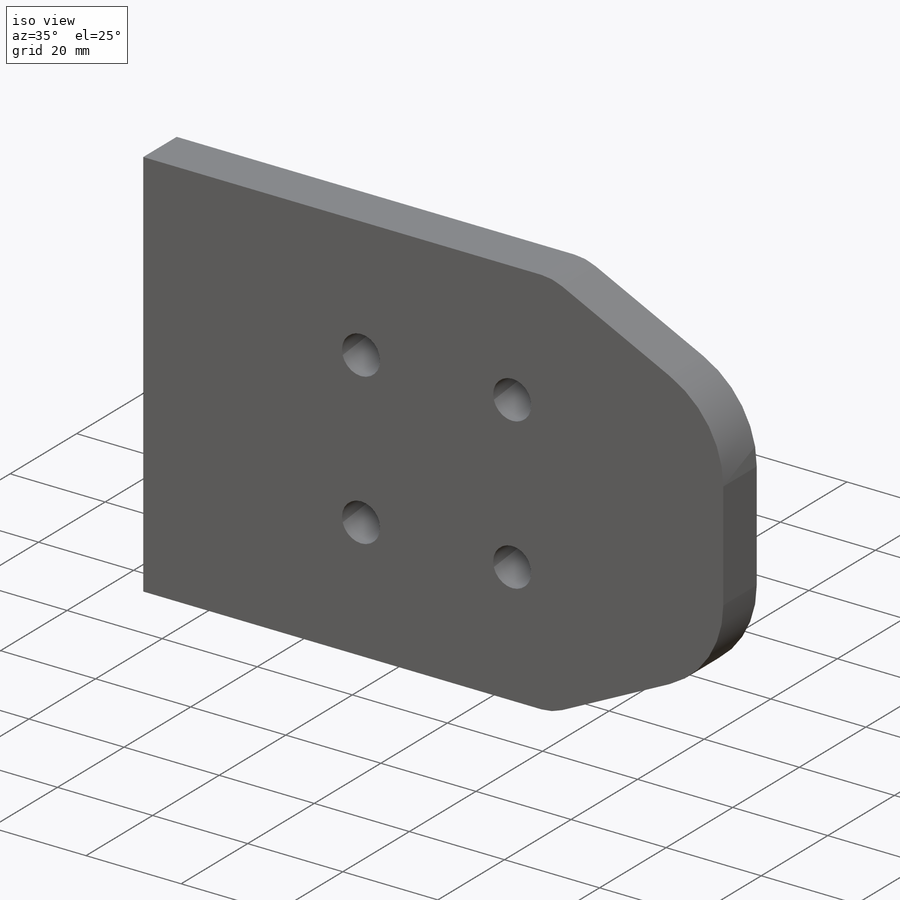
[diagram: iso view]
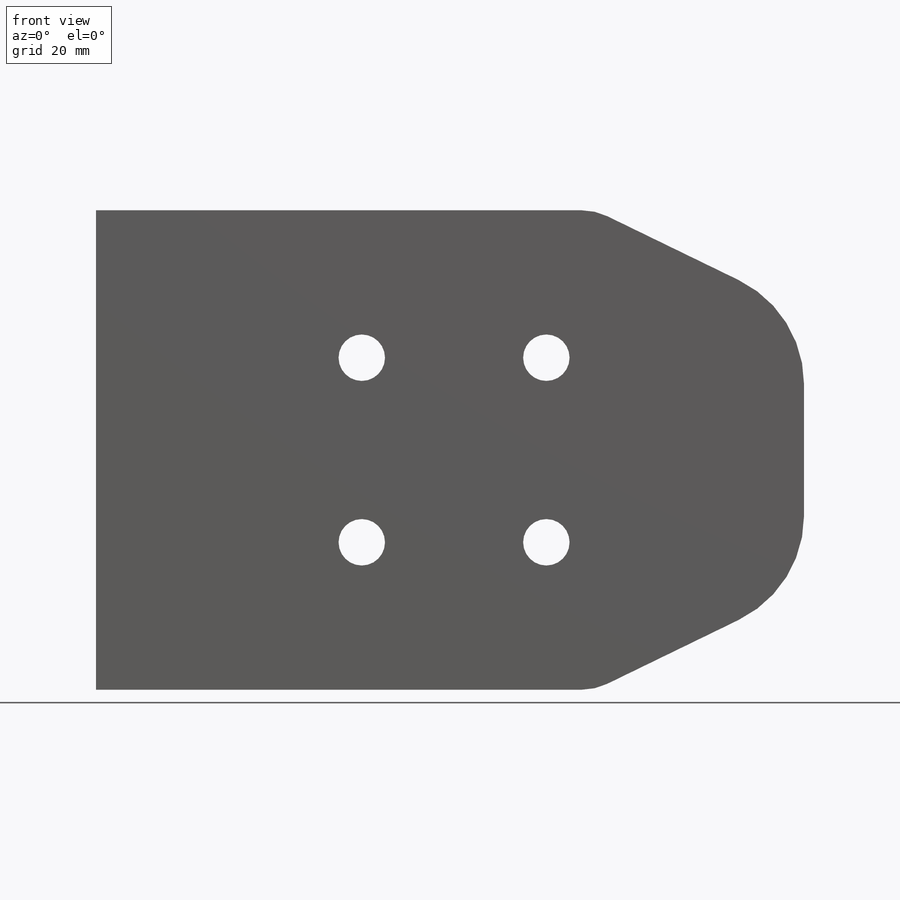
[diagram: front view]
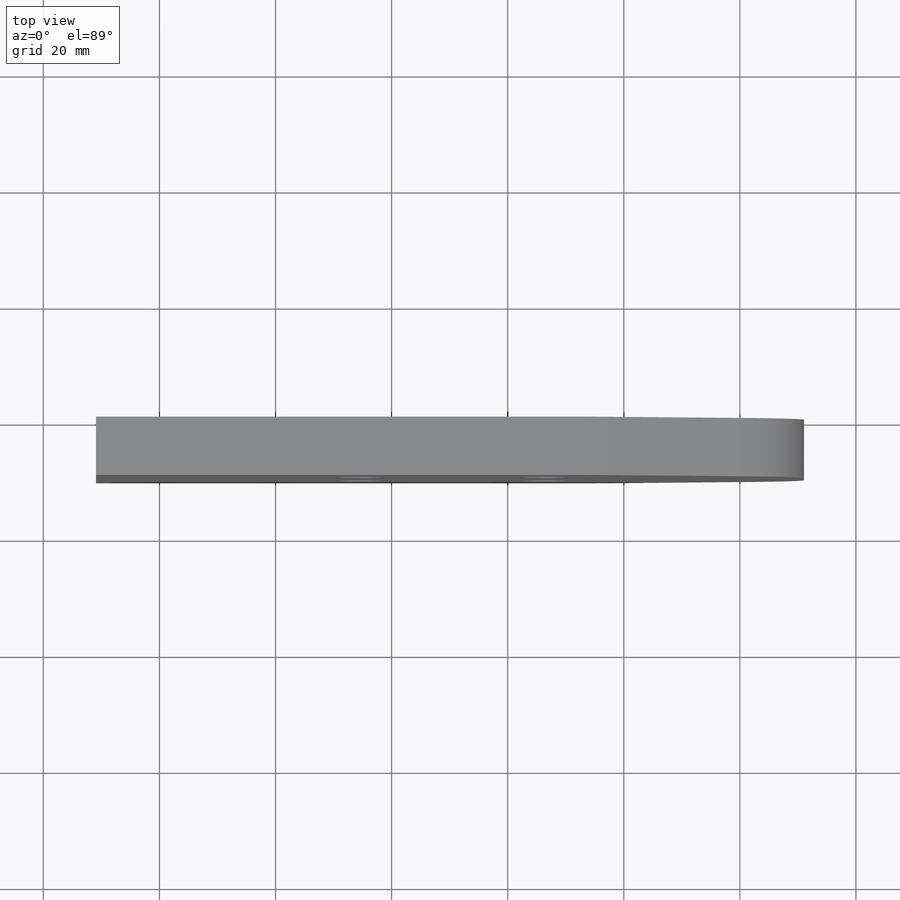
[diagram: top view]
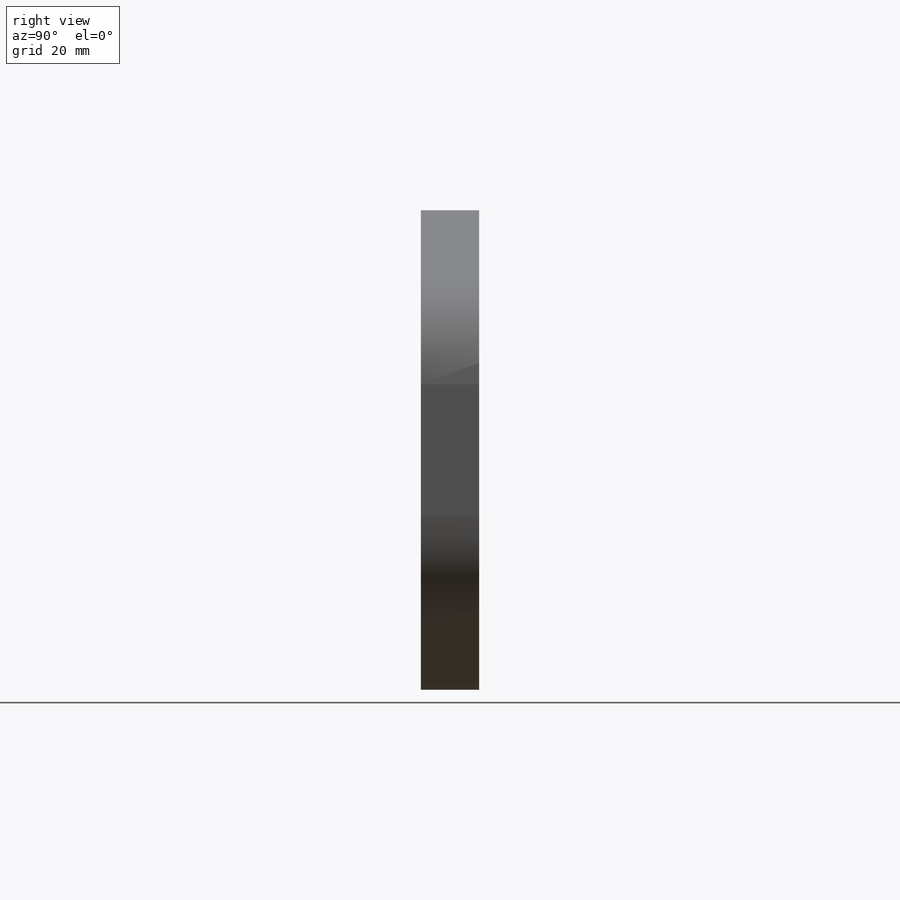
[diagram: right view]
SOLIDWORKS PART (.sldprt)
format: sldprt  version: not decoded by parser v0  size: 173,568 bytes
history: native  units: mm
features: sketch x3, cut_extrude x2, fillet x2, material x1, extrude x1 (+14 scaffold rows collapsed)
feature tree (23):
  scaffold x14  (default folders/planes/origin — collapsed)
  material  "Material <not specified>"
  sketch  "Sketch1"  dims[D1=82.6mm D2=122.0mm]
  extrude  "Extrude1"  Depth=10.05mm
  sketch  "Sketch2"  dims[c1.D1=8.0mm c1.D4=8.0mm c1.D6=8.0mm c1.D9=8.0mm c1.D10=5.0mm c1.D2=45.8mm c1.D3=25.4mm c1.D5=31.8mm c2.D6=25.3mm c2.D7=25.4mm c2.D8=31.8mm c2.D10=25.4mm c2.D11=31.8mm c2.D12=45.8mm]
  cut_extrude  "Extrude2"  [1 undecoded]
  sketch  "Sketch3"  dims[D1=17.5mm D2=36.0mm]
  cut_extrude  "Extrude3"  [1 undecoded]
  fillet  "Fillet1"  Radius=10mm
  fillet  "Fillet2"  Radius=20mm
decode coverage: 6 of 8 modeling features carry decoded parameters
note: 2 parameter values undecoded
note: suppression state not decoded; provenance and decode notes live in map.json
